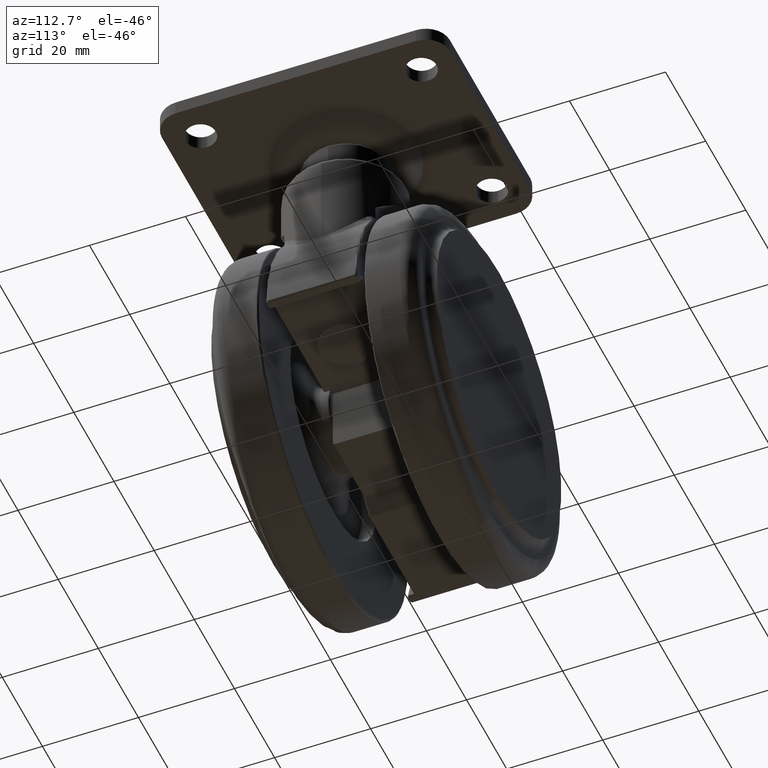
[diagram: clean part render]
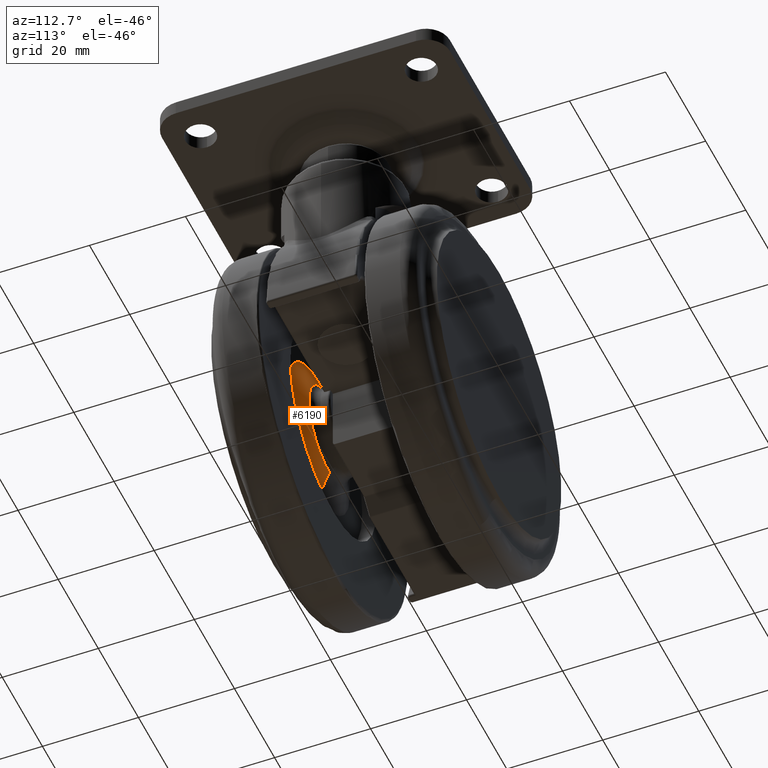
[diagram: same view with one face highlighted and labeled with its STEP entity id]
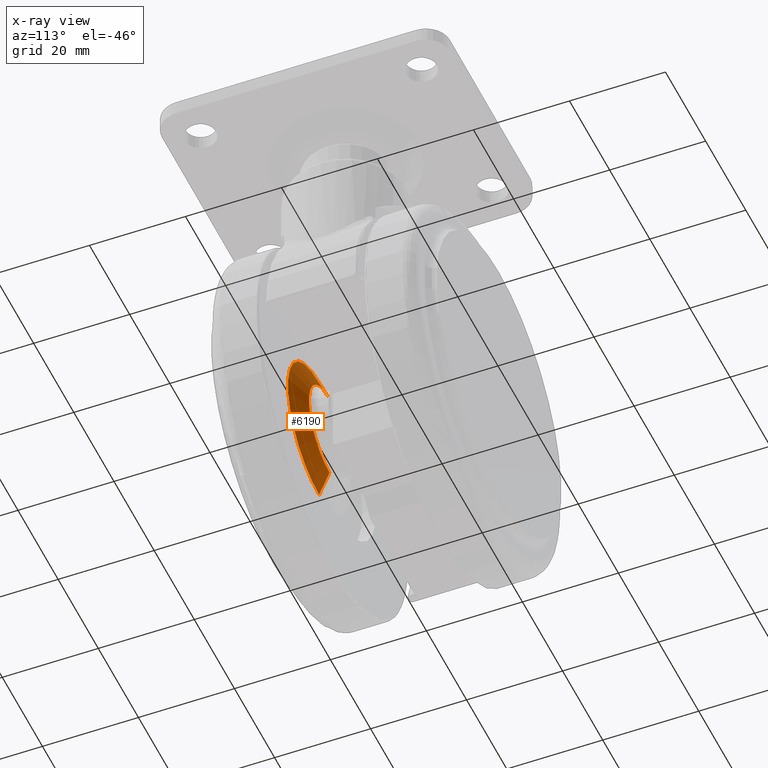
[diagram: x-ray of the same camera — body ghosted, the highlighted face saturated]
A machine part, auxiliary view. The second image highlights one B-rep face of the part: STEP entity #6190.
The next image is the same camera in x-ray: the body ghosted, the highlighted face saturated — about 0% of this face is hidden behind the body in this view.
In plain terms, the highlighted conical surface has half-angle 67.536 deg.
Its self-contained STEP definition (entity closure, byte-faithful):
#19 = VECTOR ( 'NONE', #6002, 1000.000000000000100 ) ;
#1030 = FACE_OUTER_BOUND ( 'NONE', #4249, .T. ) ;
#1068 = EDGE_CURVE ( 'NONE', #2943, #9075, #5611, .T. ) ;
#1173 = ORIENTED_EDGE ( 'NONE', *, *, #2372, .T. ) ;
#1336 = DIRECTION ( 'NONE',  ( 0.0000000000000000000, -0.3821043699168795200, -0.9241191754803188600 ) ) ;
#2230 = EDGE_CURVE ( 'NONE', #4979, #9075, #7907, .T. ) ;
#2372 = EDGE_CURVE ( 'NONE', #7061, #2943, #5387, .T. ) ;
#2464 = CONICAL_SURFACE ( 'NONE', #7967, 15.50000000000000000, 1.178723936475072600 ) ;
#2943 = VERTEX_POINT ( 'NONE', #7817 ) ;
#3074 = DIRECTION ( 'NONE',  ( 0.0000000000000000000, -1.000000000000000000, 0.0000000000000000000 ) ) ;
#3191 = CARTESIAN_POINT ( 'NONE',  ( -20.00000000000000000, -11.82335740127932100, -40.50000000000000000 ) ) ;
#3674 = CARTESIAN_POINT ( 'NONE',  ( -20.00000000000000000, -14.00000000000000000, -56.00000000000000000 ) ) ;
#3898 = DIRECTION ( 'NONE',  ( 0.0000000000000000000, 0.0000000000000000000, -1.000000000000000000 ) ) ;
#3908 = CARTESIAN_POINT ( 'NONE',  ( -19.99999999999999600, -14.00000000000000000, -25.00000000000000000 ) ) ;
#3995 = CARTESIAN_POINT ( 'NONE',  ( -20.00000000000000000, -11.82335740127932100, -50.73579126016620200 ) ) ;
#4249 = EDGE_LOOP ( 'NONE', ( #1173, #6811, #6972, #7997 ) ) ;
#4867 = CARTESIAN_POINT ( 'NONE',  ( -20.00000000000000000, -14.00000000000000000, -56.00000000000000000 ) ) ;
#4979 = VERTEX_POINT ( 'NONE', #3674 ) ;
#5028 = CARTESIAN_POINT ( 'NONE',  ( -20.00000000000000000, -14.00000000000000000, -40.50000000000000000 ) ) ;
#5088 = AXIS2_PLACEMENT_3D ( 'NONE', #3191, #8098, #3898 ) ;
#5387 = CIRCLE ( 'NONE', #5088, 10.23579126016620200 ) ;
#5611 = LINE ( 'NONE', #7402, #19 ) ;
#6002 = DIRECTION ( 'NONE',  ( 1.131719590282663600E-016, -0.3821043699168795200, 0.9241191754803188600 ) ) ;
#6190 = ADVANCED_FACE ( 'NONE', ( #1030 ), #2464, .T. ) ;
#6380 = VECTOR ( 'NONE', #1336, 1000.000000000000100 ) ;
#6390 = DIRECTION ( 'NONE',  ( 0.0000000000000000000, 0.0000000000000000000, -1.000000000000000000 ) ) ;
#6811 = ORIENTED_EDGE ( 'NONE', *, *, #1068, .T. ) ;
#6972 = ORIENTED_EDGE ( 'NONE', *, *, #2230, .F. ) ;
#7061 = VERTEX_POINT ( 'NONE', #3995 ) ;
#7267 = CARTESIAN_POINT ( 'NONE',  ( -20.00000000000000000, -14.00000000000000000, -40.50000000000000000 ) ) ;
#7402 = CARTESIAN_POINT ( 'NONE',  ( -19.99999999999999600, -14.00000000000000000, -25.00000000000000000 ) ) ;
#7808 = DIRECTION ( 'NONE',  ( 0.0000000000000000000, -1.000000000000000000, 0.0000000000000000000 ) ) ;
#7817 = CARTESIAN_POINT ( 'NONE',  ( -19.99999999999999600, -11.82335740127932100, -30.26420873983379800 ) ) ;
#7907 = CIRCLE ( 'NONE', #8078, 15.50000000000000000 ) ;
#7967 = AXIS2_PLACEMENT_3D ( 'NONE', #5028, #7808, #6390 ) ;
#7980 = DIRECTION ( 'NONE',  ( 0.0000000000000000000, 0.0000000000000000000, -1.000000000000000000 ) ) ;
#7997 = ORIENTED_EDGE ( 'NONE', *, *, #8657, .F. ) ;
#8078 = AXIS2_PLACEMENT_3D ( 'NONE', #7267, #3074, #7980 ) ;
#8098 = DIRECTION ( 'NONE',  ( 0.0000000000000000000, -1.000000000000000000, 0.0000000000000000000 ) ) ;
#8253 = LINE ( 'NONE', #4867, #6380 ) ;
#8657 = EDGE_CURVE ( 'NONE', #7061, #4979, #8253, .T. ) ;
#9075 = VERTEX_POINT ( 'NONE', #3908 ) ;